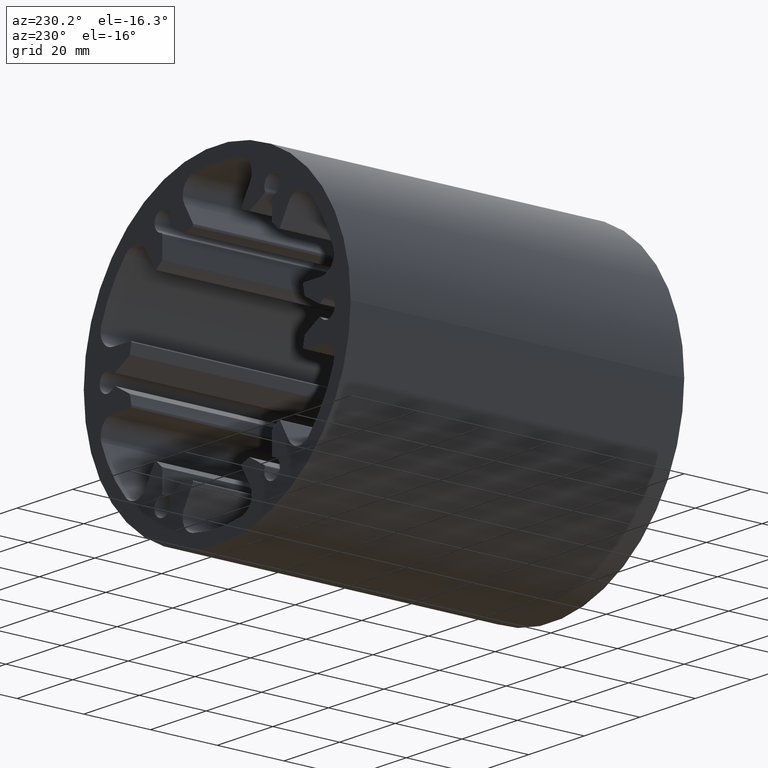
[diagram: clean part render]
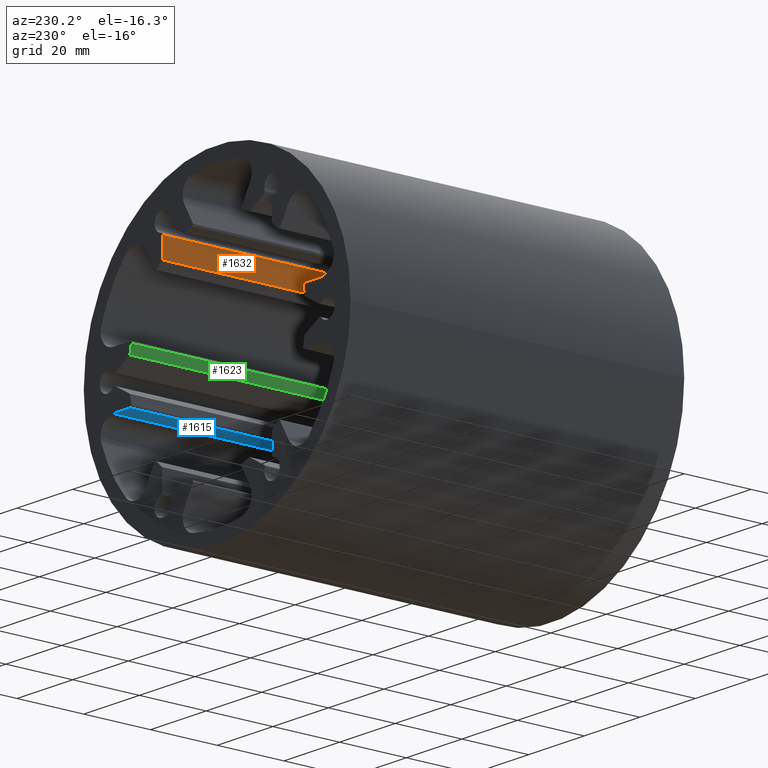
[diagram: same view with three faces highlighted in distinct colors, each labeled with its STEP entity id]
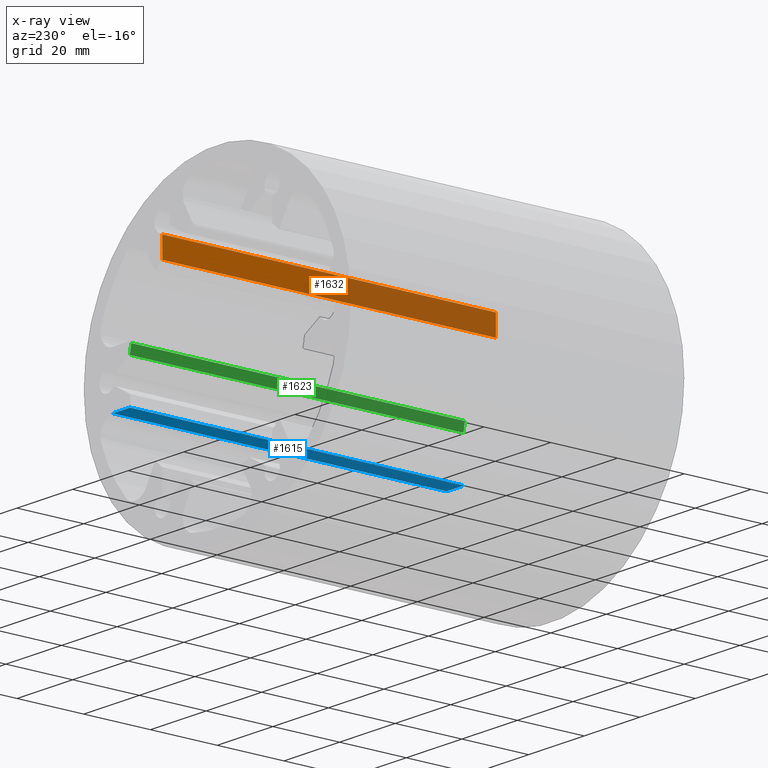
[diagram: x-ray of the same camera — body ghosted, the three highlighted faces saturated]
A machine part, auxiliary view with three faces highlighted in distinct colors.
The next image is the same camera in x-ray (body ghosted, the three faces saturated) — at least one of them is partly hidden behind the body in this view.
Their STEP definitions:

[orange] entity #1632 — the highlighted planar face has unit normal (1, 0, -0).
#25=PLANE('',#1784);
#72=FACE_OUTER_BOUND('',#159,.T.);
#159=EDGE_LOOP('',(#1148,#1149,#1150,#1151));
#264=LINE('',#2651,#397);
#265=LINE('',#2655,#398);
#266=LINE('',#2657,#399);
#267=LINE('',#2658,#400);
#397=VECTOR('',#2109,10.);
#398=VECTOR('',#2114,10.);
#399=VECTOR('',#2115,10.);
#400=VECTOR('',#2116,10.);
#665=VERTEX_POINT('',#2648);
#666=VERTEX_POINT('',#2650);
#667=VERTEX_POINT('',#2654);
#668=VERTEX_POINT('',#2656);
#863=EDGE_CURVE('',#665,#666,#264,.T.);
#865=EDGE_CURVE('',#667,#665,#265,.T.);
#866=EDGE_CURVE('',#667,#668,#266,.T.);
#867=EDGE_CURVE('',#666,#668,#267,.T.);
#1148=ORIENTED_EDGE('',*,*,#865,.F.);
#1149=ORIENTED_EDGE('',*,*,#866,.T.);
#1150=ORIENTED_EDGE('',*,*,#867,.F.);
#1151=ORIENTED_EDGE('',*,*,#863,.F.);
#1632=ADVANCED_FACE('',(#72),#25,.F.);
#1784=AXIS2_PLACEMENT_3D('',#2653,#2112,#2113);
#2109=DIRECTION('',(0.,1.,0.));
#2112=DIRECTION('center_axis',(1.,0.,-1.13822324829209E-13));
#2113=DIRECTION('ref_axis',(-1.13822324829209E-13,0.,-1.));
#2114=DIRECTION('',(-1.13822324829209E-13,0.,-1.));
#2115=DIRECTION('',(0.,1.,0.));
#2116=DIRECTION('',(1.13822324829209E-13,0.,1.));
#2648=CARTESIAN_POINT('',(19.7500000000024,0.,24.8596057893102));
#2650=CARTESIAN_POINT('',(19.7500000000024,100.,24.8596057893102));
#2651=CARTESIAN_POINT('',(19.7500000000024,0.,24.8596057893102));
#2653=CARTESIAN_POINT('Origin',(19.7500000000031,0.,30.9461021634233));
#2654=CARTESIAN_POINT('',(19.7500000000031,0.,30.9461021634233));
#2655=CARTESIAN_POINT('',(19.7500000000013,0.,15.4730510817104));
#2656=CARTESIAN_POINT('',(19.7500000000031,100.,30.9461021634233));
#2657=CARTESIAN_POINT('',(19.7500000000031,0.,30.9461021634233));
#2658=CARTESIAN_POINT('',(19.7500000000013,100.,15.4730510817104));

[blue] entity #1615 — the highlighted planar face has unit normal (0, 0, 1).
#20=PLANE('',#1743);
#55=FACE_OUTER_BOUND('',#142,.T.);
#142=EDGE_LOOP('',(#1080,#1081,#1082,#1083));
#237=LINE('',#2549,#370);
#238=LINE('',#2553,#371);
#239=LINE('',#2555,#372);
#240=LINE('',#2556,#373);
#370=VECTOR('',#2000,10.);
#371=VECTOR('',#2005,10.);
#372=VECTOR('',#2006,10.);
#373=VECTOR('',#2007,10.);
#631=VERTEX_POINT('',#2546);
#632=VERTEX_POINT('',#2548);
#633=VERTEX_POINT('',#2552);
#634=VERTEX_POINT('',#2554);
#812=EDGE_CURVE('',#631,#632,#237,.T.);
#814=EDGE_CURVE('',#633,#631,#238,.T.);
#815=EDGE_CURVE('',#633,#634,#239,.T.);
#816=EDGE_CURVE('',#632,#634,#240,.T.);
#1080=ORIENTED_EDGE('',*,*,#814,.F.);
#1081=ORIENTED_EDGE('',*,*,#815,.T.);
#1082=ORIENTED_EDGE('',*,*,#816,.F.);
#1083=ORIENTED_EDGE('',*,*,#812,.F.);
#1615=ADVANCED_FACE('',(#55),#20,.F.);
#1743=AXIS2_PLACEMENT_3D('',#2551,#2003,#2004);
#2000=DIRECTION('',(0.,1.,0.));
#2003=DIRECTION('center_axis',(9.3121777898985E-14,0.,1.));
#2004=DIRECTION('ref_axis',(1.,0.,-9.3121777898985E-14));
#2005=DIRECTION('',(1.,0.,-9.3121777898985E-14));
#2006=DIRECTION('',(0.,1.,0.));
#2007=DIRECTION('',(-1.,0.,9.3121777898985E-14));
#2546=CARTESIAN_POINT('',(37.4699879903896,0.,-8.0000000000037));
#2548=CARTESIAN_POINT('',(37.4699879903896,100.,-8.0000000000037));
#2549=CARTESIAN_POINT('',(37.4699879903896,0.,-8.0000000000037));
#2551=CARTESIAN_POINT('Origin',(31.365785499489,0.,-8.00000000000313));
#2552=CARTESIAN_POINT('',(31.365785499489,0.,-8.00000000000313));
#2553=CARTESIAN_POINT('',(15.6828927497439,0.,-8.00000000000167));
#2554=CARTESIAN_POINT('',(31.365785499489,100.,-8.00000000000313));
#2555=CARTESIAN_POINT('',(31.365785499489,0.,-8.00000000000313));
#2556=CARTESIAN_POINT('',(15.6828927497439,100.,-8.00000000000167));

[green] entity #1623 — the highlighted cylindrical surface (partial cylindrical patch) has radius 31.75 mm, axis along (0, 1, 0).
#63=FACE_OUTER_BOUND('',#150,.T.);
#150=EDGE_LOOP('',(#1112,#1113,#1114,#1115));
#250=LINE('',#2597,#383);
#252=LINE('',#2603,#385);
#383=VECTOR('',#2051,10.);
#385=VECTOR('',#2057,10.);
#513=CIRCLE('',#1762,31.75);
#514=CIRCLE('',#1763,31.75);
#647=VERTEX_POINT('',#2594);
#648=VERTEX_POINT('',#2596);
#649=VERTEX_POINT('',#2600);
#650=VERTEX_POINT('',#2602);
#836=EDGE_CURVE('',#647,#648,#250,.T.);
#838=EDGE_CURVE('',#649,#647,#513,.T.);
#839=EDGE_CURVE('',#649,#650,#252,.T.);
#840=EDGE_CURVE('',#648,#650,#514,.T.);
#1112=ORIENTED_EDGE('',*,*,#838,.F.);
#1113=ORIENTED_EDGE('',*,*,#839,.T.);
#1114=ORIENTED_EDGE('',*,*,#840,.F.);
#1115=ORIENTED_EDGE('',*,*,#836,.F.);
#1556=CYLINDRICAL_SURFACE('',#1761,31.75);
#1623=ADVANCED_FACE('',(#63),#1556,.F.);
#1761=AXIS2_PLACEMENT_3D('',#2599,#2053,#2054);
#1762=AXIS2_PLACEMENT_3D('',#2601,#2055,#2056);
#1763=AXIS2_PLACEMENT_3D('',#2604,#2058,#2059);
#2051=DIRECTION('',(0.,1.,0.));
#2053=DIRECTION('center_axis',(0.,1.,0.));
#2054=DIRECTION('ref_axis',(-0.97258249610823,0.,-0.232558139534793));
#2055=DIRECTION('center_axis',(0.,1.,0.));
#2056=DIRECTION('ref_axis',(-0.97258249610823,0.,-0.232558139534793));
#2057=DIRECTION('',(0.,1.,0.));
#2058=DIRECTION('center_axis',(0.,-1.,0.));
#2059=DIRECTION('ref_axis',(-0.97258249610823,0.,-0.232558139534793));
#2594=CARTESIAN_POINT('',(31.4040501416115,0.,4.6741988300835));
#2596=CARTESIAN_POINT('',(31.4040501416115,100.,4.6741988300835));
#2597=CARTESIAN_POINT('',(31.4040501416115,0.,4.6741988300835));
#2599=CARTESIAN_POINT('Origin',(-3.19744231092045E-13,0.,-2.8421709430404E-13));
#2600=CARTESIAN_POINT('',(30.8794942514363,0.,7.38372093022949));
#2601=CARTESIAN_POINT('Origin',(-3.19744231092045E-13,0.,-2.8421709430404E-13));
#2602=CARTESIAN_POINT('',(30.8794942514363,100.,7.38372093022949));
#2603=CARTESIAN_POINT('',(30.8794942514363,0.,7.38372093022949));
#2604=CARTESIAN_POINT('Origin',(-3.19744231092045E-13,100.,-2.8421709430404E-13));